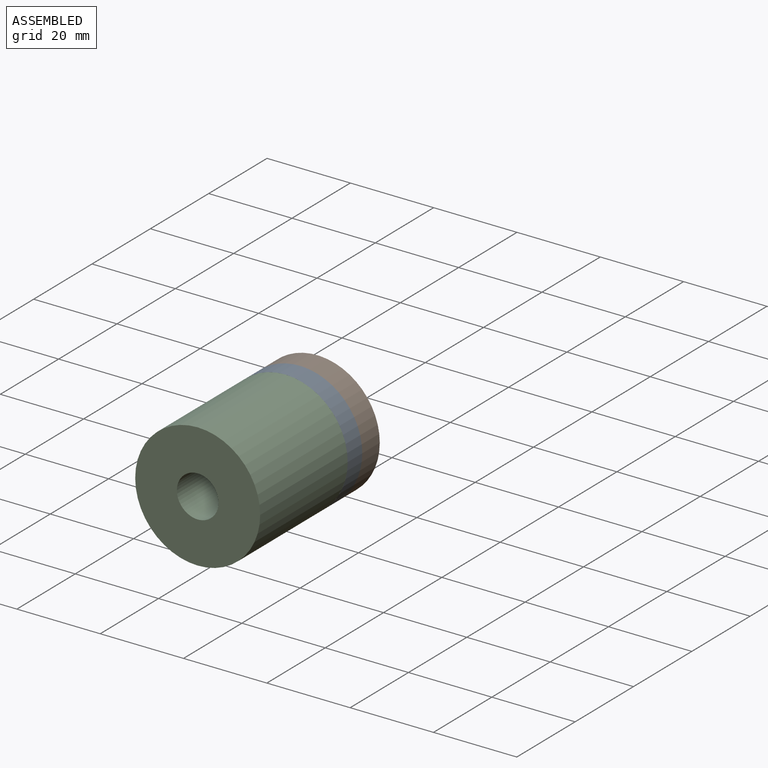
[diagram: assembled view]
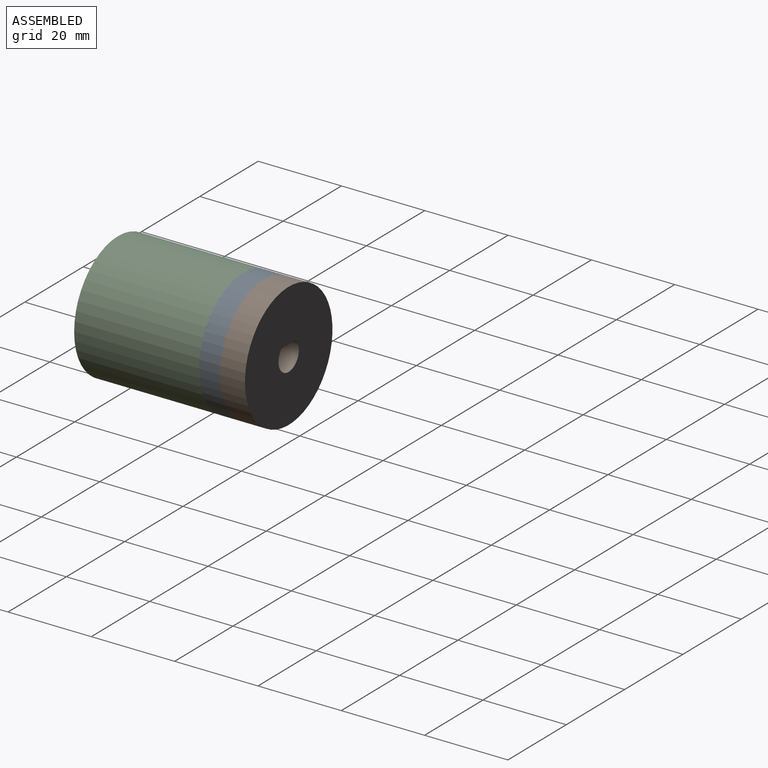
[diagram: assembled view, second angle]
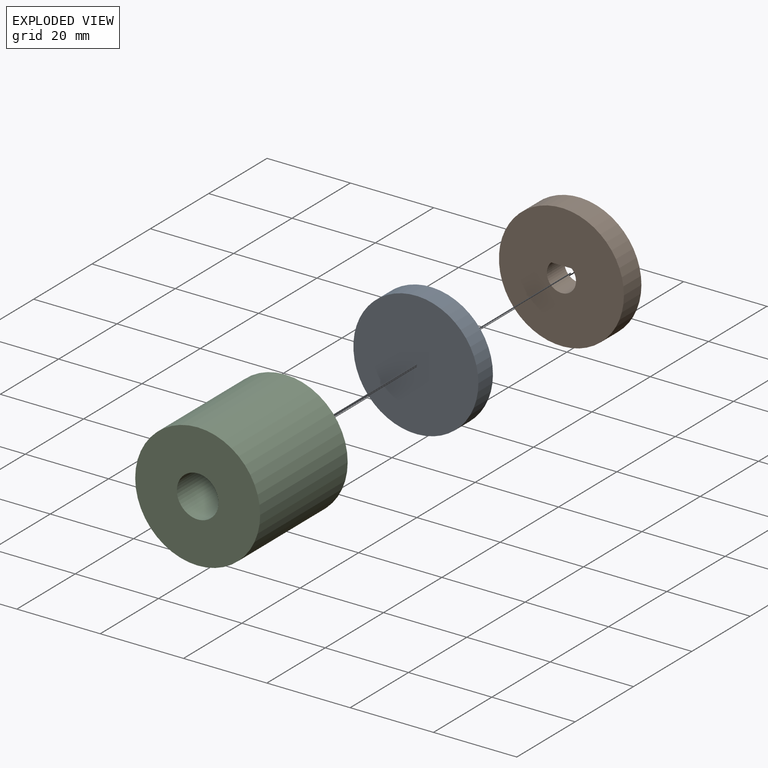
[diagram: exploded view]
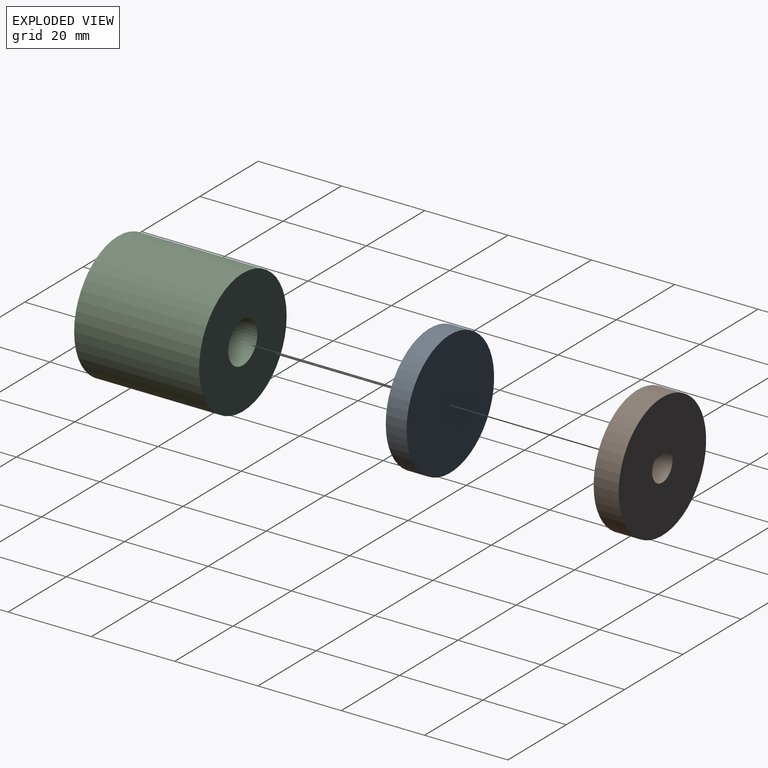
[diagram: exploded view, second angle]
ASSEMBLY  parts=3 mates=2
PART A: 3 faces, bbox 30x5x30 mm
  f0: cylinder r=15mm len=30mm, axis (0,1,0), area 471.2mm2, adj f1,f2
  f1: plane 30x30mm, normal (0,-1,0), area 706.9mm2, adj f0
  f2: plane 30x30mm, normal (0,1,0), area 706.9mm2, adj f0
PART B: 5 faces, bbox 30x6x30 mm
  f0: cylinder r=3.5mm len=7mm, axis (0,1,0), area 99.4mm2, adj f1,f3,f4
  f1: plane 6x4.9mm, normal (0,0,-1), area 29.4mm2, adj f0,f3,f4
  f2: cylinder r=15mm len=30mm, axis (0,1,0), area 565.5mm2, adj f3,f4
  f3: plane 30x30mm, normal (0,-1,0), area 671.7mm2, adj f0,f1,f2
  f4: plane 30x30mm, normal (0,1,0), area 671.7mm2, adj f0,f1,f2
PART C: 4 faces, bbox 30x30x30 mm
  f0: cylinder r=5mm len=30mm, axis (0,1,0), area 942.5mm2, adj f2,f3
  f1: cylinder r=15mm len=30mm, axis (0,1,0), area 2827.4mm2, adj f2,f3
  f2: plane 30x30mm, normal (0,-1,0), area 628.3mm2, adj f0,f1
  f3: plane 30x30mm, normal (0,1,0), area 628.3mm2, adj f0,f1
PLACE A t=(-61.38,-9.6,-65.58)mm
PLACE B t=(-61.38,-3.6,-65.58)mm
PLACE C t=(-61.38,-14.6,-65.58)mm
MATE fastened A.f0 <-> C.f0  axis (0,-1,0) through (-61.38,-14.6,-65.58)mm
MATE fastened B.f0 <-> A.f0  axis (0,-1,0) through (-61.38,-9.6,-65.58)mm
